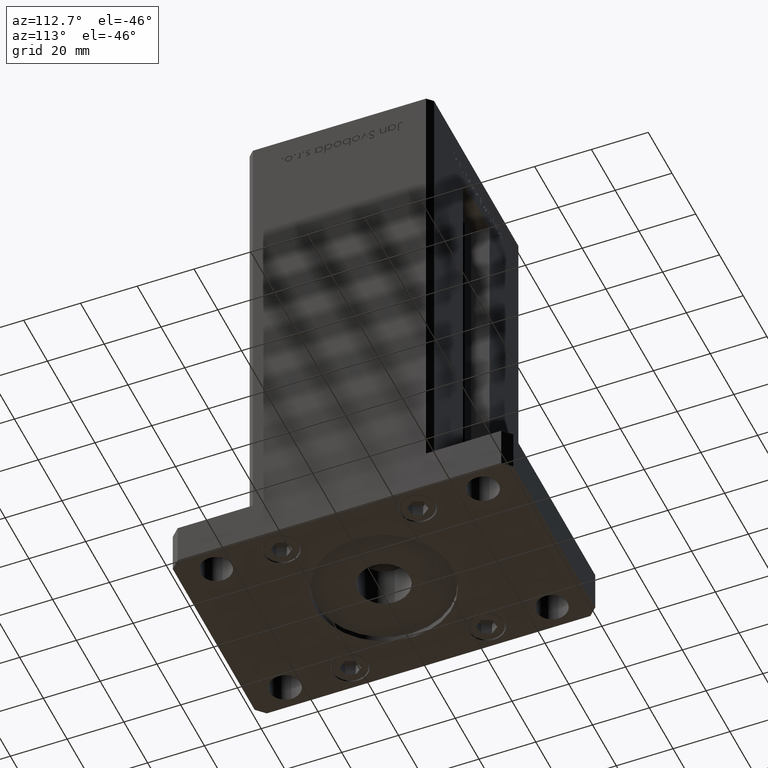
[diagram: clean part render]
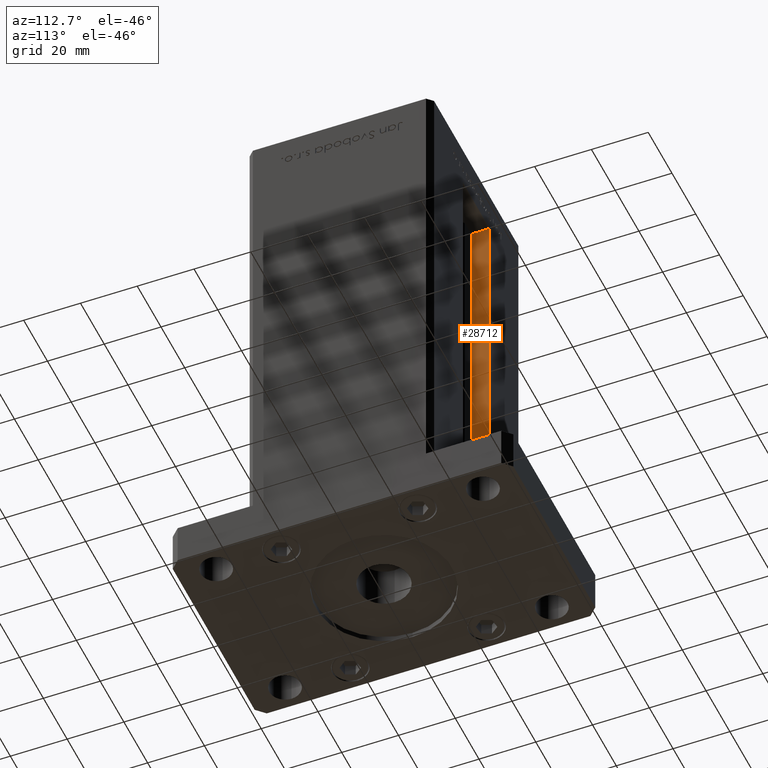
[diagram: same view with one face highlighted and labeled with its STEP entity id]
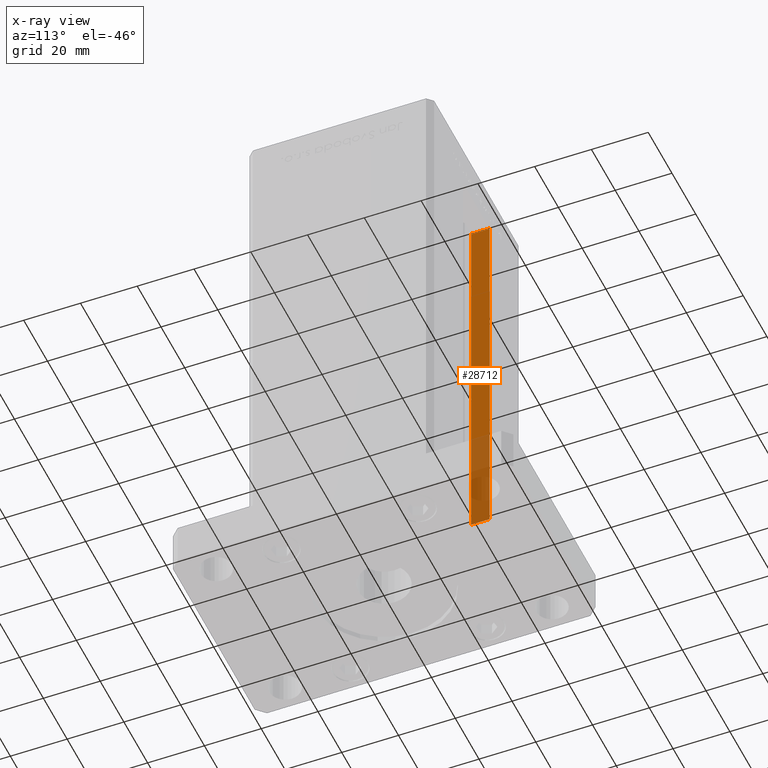
[diagram: x-ray of the same camera — body ghosted, the highlighted face saturated]
A machine part, auxiliary view. The second image highlights one B-rep face of the part: STEP entity #28712.
The next image is the same camera in x-ray: the body ghosted, the highlighted face saturated — about 29% of this face is hidden behind the body in this view.
In plain terms, the highlighted planar face has unit normal (-1, 0, 0).
Its self-contained STEP definition (entity closure, byte-faithful):
#1189 = ORIENTED_EDGE ( 'NONE', *, *, #45131, .F. ) ;
#1339 = VERTEX_POINT ( 'NONE', #50384 ) ;
#4252 = AXIS2_PLACEMENT_3D ( 'NONE', #32939, #37031, #13101 ) ;
#6421 = EDGE_CURVE ( 'NONE', #12287, #20799, #20658, .T. ) ;
#6471 = ORIENTED_EDGE ( 'NONE', *, *, #6421, .F. ) ;
#7185 = CARTESIAN_POINT ( 'NONE',  ( -11.25000000000000178, 25.99999999999999289, 0.000000000000000000 ) ) ;
#10226 = LINE ( 'NONE', #26782, #36032 ) ;
#12287 = VERTEX_POINT ( 'NONE', #39274 ) ;
#13101 = DIRECTION ( 'NONE',  ( 0.000000000000000000, 0.000000000000000000, 1.000000000000000000 ) ) ;
#20658 = LINE ( 'NONE', #53247, #38043 ) ;
#20799 = VERTEX_POINT ( 'NONE', #7185 ) ;
#22726 = EDGE_LOOP ( 'NONE', ( #1189, #6471, #47755, #53252 ) ) ;
#26782 = CARTESIAN_POINT ( 'NONE',  ( -11.25000000000000178, 0.000000000000000000, 136.0000000000000000 ) ) ;
#28712 = ADVANCED_FACE ( 'NONE', ( #33207 ), #49746, .F. ) ;
#28811 = DIRECTION ( 'NONE',  ( -0.000000000000000000, -1.000000000000000000, -0.000000000000000000 ) ) ;
#32162 = DIRECTION ( 'NONE',  ( -0.000000000000000000, -0.000000000000000000, 1.000000000000000000 ) ) ;
#32939 = CARTESIAN_POINT ( 'NONE',  ( -11.25000000000000178, 25.99999999999999289, 0.000000000000000000 ) ) ;
#33207 = FACE_OUTER_BOUND ( 'NONE', #22726, .T. ) ;
#33531 = LINE ( 'NONE', #42236, #47785 ) ;
#35231 = CARTESIAN_POINT ( 'NONE',  ( -11.25000000000000178, 25.99999999999999289, 136.0000000000000000 ) ) ;
#35773 = EDGE_CURVE ( 'NONE', #12287, #1339, #33531, .T. ) ;
#35990 = CARTESIAN_POINT ( 'NONE',  ( -11.25000000000000178, 25.99999999999999289, 0.000000000000000000 ) ) ;
#36032 = VECTOR ( 'NONE', #47157, 1000.000000000000000 ) ;
#37031 = DIRECTION ( 'NONE',  ( -1.000000000000000000, 0.000000000000000000, 0.000000000000000000 ) ) ;
#38043 = VECTOR ( 'NONE', #28811, 1000.000000000000000 ) ;
#39274 = CARTESIAN_POINT ( 'NONE',  ( -11.25000000000000178, 32.49999999999999289, 0.000000000000000000 ) ) ;
#39517 = LINE ( 'NONE', #35990, #49702 ) ;
#42236 = CARTESIAN_POINT ( 'NONE',  ( -11.25000000000000178, 32.49999999999999289, 0.000000000000000000 ) ) ;
#45131 = EDGE_CURVE ( 'NONE', #20799, #49934, #39517, .T. ) ;
#47157 = DIRECTION ( 'NONE',  ( 0.000000000000000000, 1.000000000000000000, 0.000000000000000000 ) ) ;
#47755 = ORIENTED_EDGE ( 'NONE', *, *, #35773, .T. ) ;
#47785 = VECTOR ( 'NONE', #50068, 1000.000000000000000 ) ;
#49702 = VECTOR ( 'NONE', #32162, 1000.000000000000000 ) ;
#49746 = PLANE ( 'NONE',  #4252 ) ;
#49883 = EDGE_CURVE ( 'NONE', #49934, #1339, #10226, .T. ) ;
#49934 = VERTEX_POINT ( 'NONE', #35231 ) ;
#50068 = DIRECTION ( 'NONE',  ( -0.000000000000000000, -0.000000000000000000, 1.000000000000000000 ) ) ;
#50384 = CARTESIAN_POINT ( 'NONE',  ( -11.25000000000000178, 32.49999999999999289, 136.0000000000000000 ) ) ;
#53247 = CARTESIAN_POINT ( 'NONE',  ( -11.25000000000000178, 25.99999999999999289, 0.000000000000000000 ) ) ;
#53252 = ORIENTED_EDGE ( 'NONE', *, *, #49883, .F. ) ;